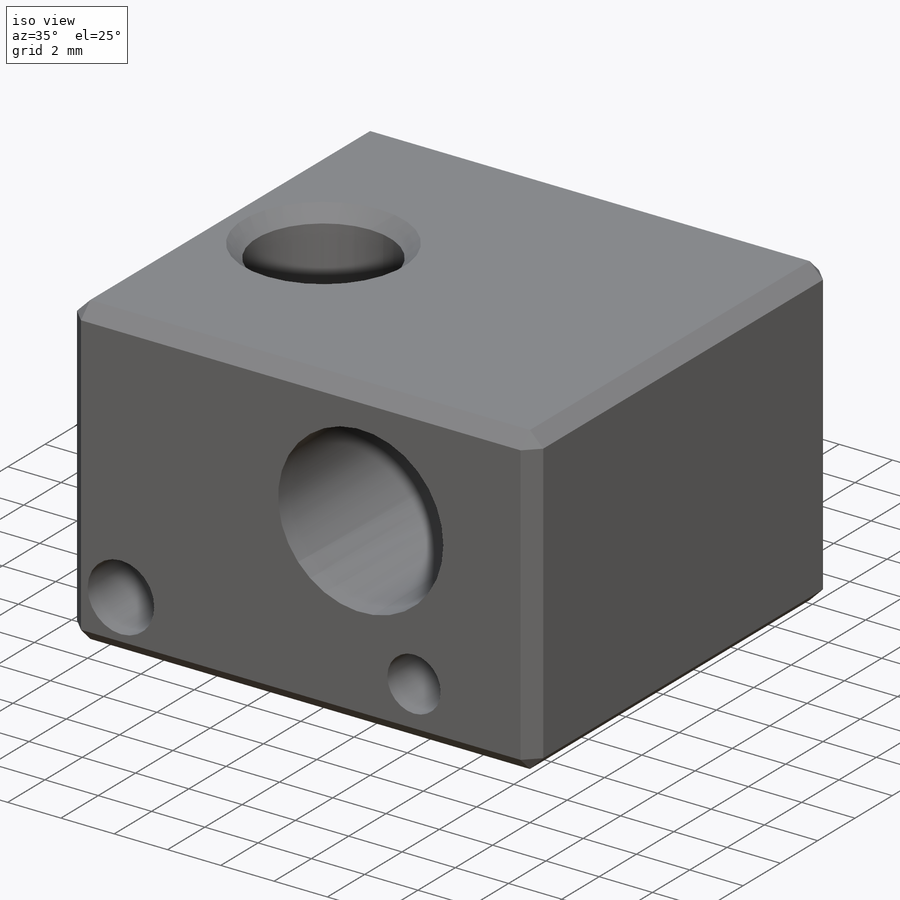
[diagram: iso view]
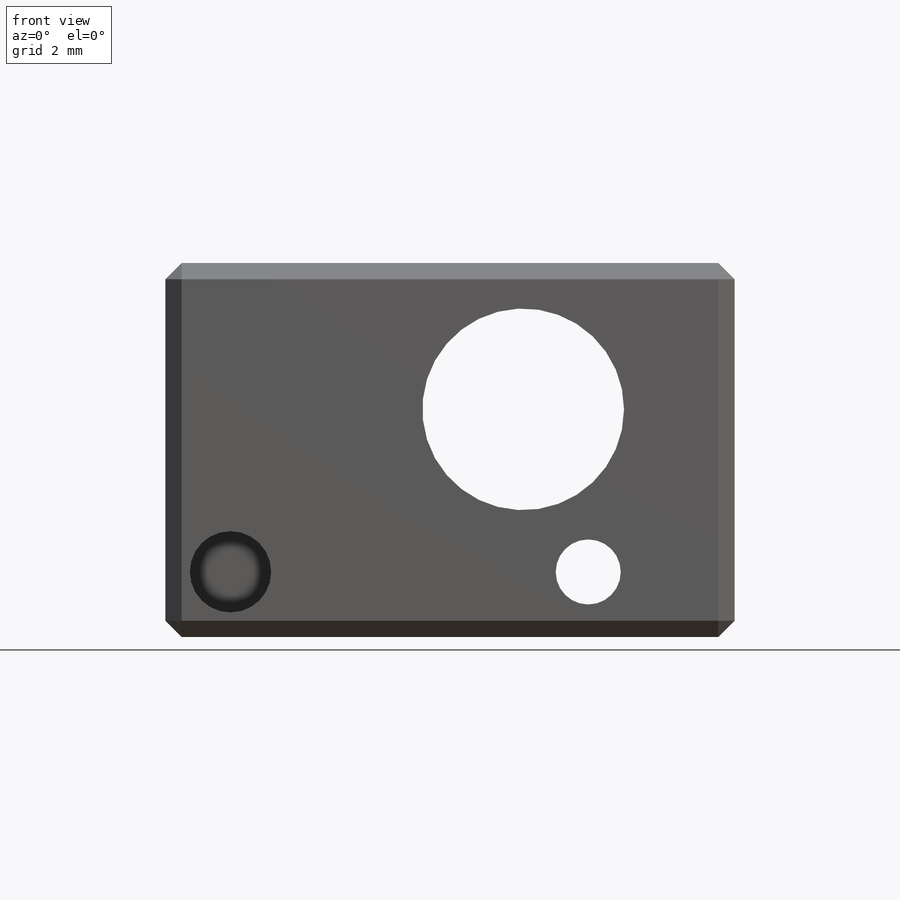
[diagram: front view]
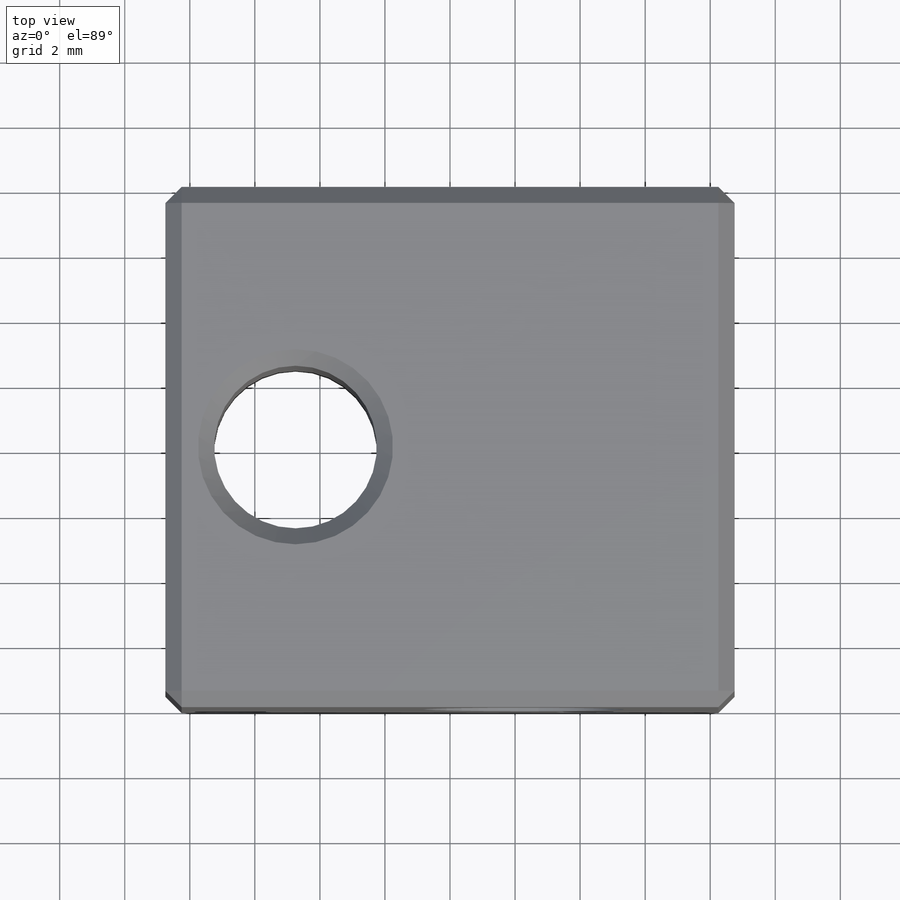
[diagram: top view]
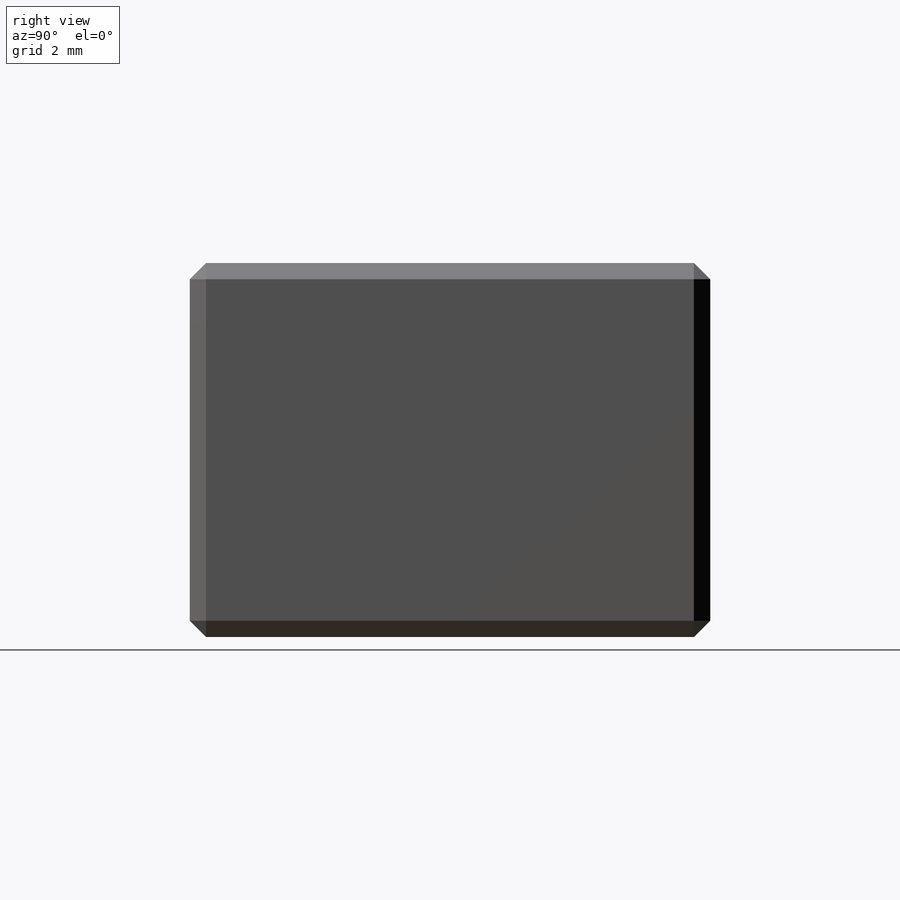
[diagram: right view]
SOLIDWORKS PART (.sldprt)
format: sldprt  version: not decoded by parser v0  size: 284,672 bytes
history: native  units: mm
features: sketch x8, hole x3, material x1, extrude x1, cut_extrude x1, chamfer x1 (+13 scaffold rows collapsed)
feature tree (28):
  scaffold x13  (default folders/planes/origin — collapsed)
  material  "AISI 316 Annealed Stainless Steel Bar (SS)"
  sketch  "Sketch1"  dims[D1=17.5mm D2=16.0mm]
  extrude  "Boss-Extrude1"  Depth=11.5mm
  sketch  "Sketch2"  dims[c1.D2=6.2mm c1.D4=~1.315228mm c1.D6=2.0mm c1.D1=11.0mm c1.D3=7.0mm c2.D4=13.0mm c2.D5=~13.099228mm c3.D5=90.0deg c4.D5=2.0mm]
  cut_extrude  "Cut-Extrude1"  [1 undecoded]
  hole  "Ø2.5 (2.5) Diameter Hole1"  Diameter=2.5mm Depth=4.5mm
  sketch  "Sketch4"  dims[D1=2.0mm D2=2.0mm]
  sketch  "Sketch3"  dims[hole-wizard template sketch: 47 standard entries collapsed; hole parameters kept: c15.Hole Depth=4.5mm c15.D3=~14.816244mm c15.Drill Angle=180.0deg]
  hole  "Tap Drill for M6x1.0 Tap1"  Diameter=5mm Depth=11.5mm
  sketch  "Sketch7"  dims[D1=4.0mm]
  sketch  "Sketch6"  dims[hole-wizard template sketch: 60 standard entries collapsed; hole parameters kept: c18.Thru Hole Depth=11.5mm]
  hole  "Tap Drill for M3x0.5 Tap1"  Diameter=2.5mm Depth=6.999mm
  sketch  "Sketch9"  dims[D1=10.0mm]
  sketch  "Sketch8"  dims[hole-wizard template sketch: 47 standard entries collapsed; hole parameters kept: c15.Hole Depth=6.999mm c15.D3=~14.816244mm c15.Drill Angle=118.0deg]
  chamfer  "Chamfer1"  Distance=0.5mm Angle=45deg
decode coverage: 13 of 14 modeling features carry decoded parameters
note: ~ marks probable driven/reference dimensions
note: 1 parameter value undecoded
note: suppression state not decoded; provenance and decode notes live in map.json
